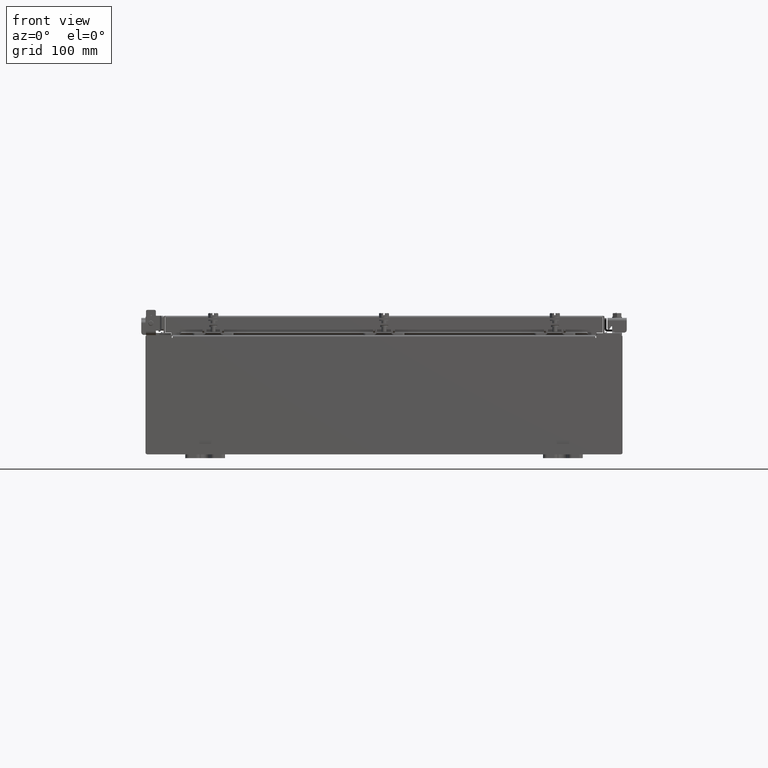
[diagram: clean part render]
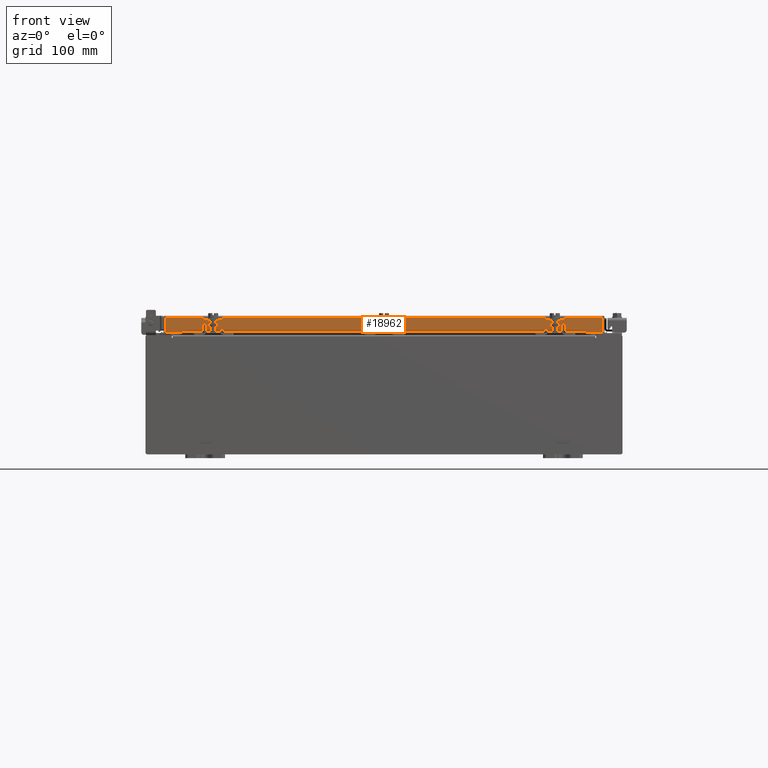
[diagram: same view with one face highlighted and labeled with its STEP entity id]
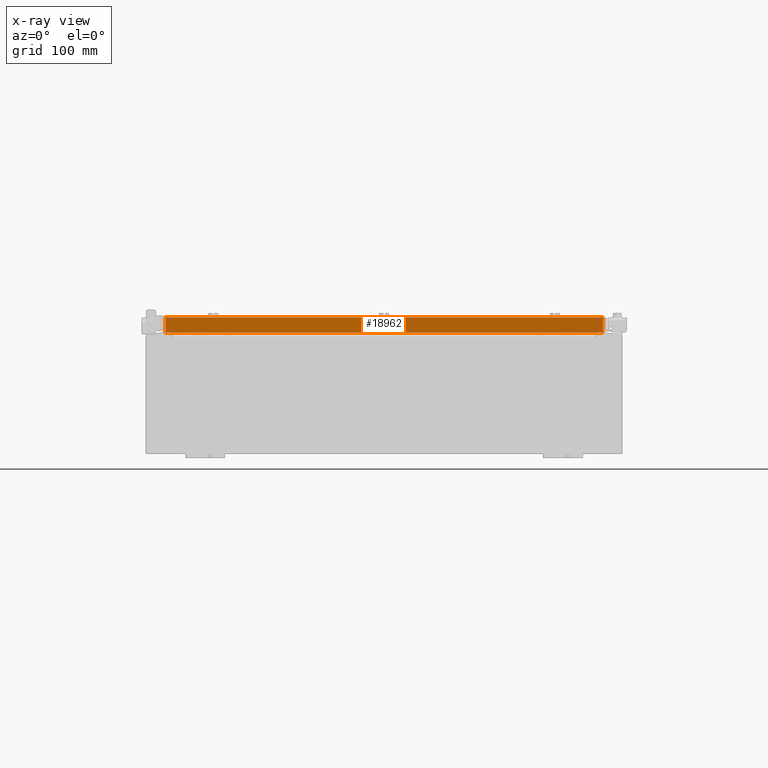
[diagram: x-ray of the same camera — body ghosted, the highlighted face saturated]
A machine part, front view. The second image highlights one B-rep face of the part: STEP entity #18962.
The next image is the same camera in x-ray: the body ghosted, the highlighted face saturated — about 0% of this face is hidden behind the body in this view.
In plain terms, the highlighted planar face has unit normal (-0, 1, -0).
Its self-contained STEP definition (entity closure, byte-faithful):
#110 = CARTESIAN_POINT ( 'NONE',  ( 11.09399999999999200, -11.09400000000000100, -0.08770000000000026400 ) ) ;
#446 = EDGE_CURVE ( 'NONE', #4461, #19142, #17648, .T. ) ;
#724 = CARTESIAN_POINT ( 'NONE',  ( 11.00515786437626200, -11.09400000000000100, -0.07470000000000015500 ) ) ;
#830 = CARTESIAN_POINT ( 'NONE',  ( -11.00515786437626900, -11.09400000000000300, -0.8499999999999966500 ) ) ;
#1099 = ORIENTED_EDGE ( 'NONE', *, *, #6764, .F. ) ;
#1215 = DIRECTION ( 'NONE',  ( -3.470684265319587400E-031, 1.000000000000000000, -2.818880942772360100E-015 ) ) ;
#1598 = EDGE_LOOP ( 'NONE', ( #1099, #2215, #4861, #21094, #13636, #7870 ) ) ;
#2215 = ORIENTED_EDGE ( 'NONE', *, *, #4498, .T. ) ;
#2684 = CARTESIAN_POINT ( 'NONE',  ( -11.00515786437627100, -11.09400000000000100, 3.168943672650545400E-014 ) ) ;
#4010 = VECTOR ( 'NONE', #20146, 39.37007874015748100 ) ;
#4461 = VERTEX_POINT ( 'NONE', #14708 ) ;
#4498 = EDGE_CURVE ( 'NONE', #16967, #14474, #5655, .T. ) ;
#4563 = CARTESIAN_POINT ( 'NONE',  ( 11.09399999999999200, -11.09400000000000300, -0.8499999999999999800 ) ) ;
#4613 = CARTESIAN_POINT ( 'NONE',  ( 0.0000000000000000000, -11.09400000000000100, 3.168943672650545400E-014 ) ) ;
#4861 = ORIENTED_EDGE ( 'NONE', *, *, #15860, .F. ) ;
#5360 = LINE ( 'NONE', #724, #15446 ) ;
#5655 = LINE ( 'NONE', #2684, #4010 ) ;
#6309 = DIRECTION ( 'NONE',  ( -1.000000000000000000, 4.379057701015054300E-047, 1.231227687788112800E-016 ) ) ;
#6321 = VERTEX_POINT ( 'NONE', #7458 ) ;
#6764 = EDGE_CURVE ( 'NONE', #16967, #7977, #22100, .T. ) ;
#7063 = DIRECTION ( 'NONE',  ( 1.000000000000000000, 3.470684265319588300E-031, -9.460278716967662300E-046 ) ) ;
#7458 = CARTESIAN_POINT ( 'NONE',  ( -10.25515786437626900, -11.09400000000000100, -0.8500000000000020900 ) ) ;
#7645 = VECTOR ( 'NONE', #6309, 39.37007874015748100 ) ;
#7688 = FACE_OUTER_BOUND ( 'NONE', #1598, .T. ) ;
#7839 = VECTOR ( 'NONE', #18468, 39.37007874015748100 ) ;
#7870 = ORIENTED_EDGE ( 'NONE', *, *, #9265, .F. ) ;
#7977 = VERTEX_POINT ( 'NONE', #11017 ) ;
#9265 = EDGE_CURVE ( 'NONE', #7977, #4461, #5360, .T. ) ;
#9878 = EDGE_CURVE ( 'NONE', #19142, #6321, #22379, .T. ) ;
#10729 = DIRECTION ( 'NONE',  ( -1.000000000000000000, 0.0000000000000000000, 0.0000000000000000000 ) ) ;
#11017 = CARTESIAN_POINT ( 'NONE',  ( 11.00515786437626200, -11.09400000000000100, -0.08770000000000026400 ) ) ;
#13063 = VECTOR ( 'NONE', #10729, 39.37007874015748100 ) ;
#13202 = PLANE ( 'NONE',  #18015 ) ;
#13342 = DIRECTION ( 'NONE',  ( 0.0000000000000000000, 2.818880942772360100E-015, 1.000000000000000000 ) ) ;
#13636 = ORIENTED_EDGE ( 'NONE', *, *, #446, .F. ) ;
#14474 = VERTEX_POINT ( 'NONE', #830 ) ;
#14708 = CARTESIAN_POINT ( 'NONE',  ( 11.00515786437626200, -11.09400000000000300, -0.8499999999999999800 ) ) ;
#15446 = VECTOR ( 'NONE', #16317, 39.37007874015748100 ) ;
#15860 = EDGE_CURVE ( 'NONE', #6321, #14474, #22144, .T. ) ;
#16317 = DIRECTION ( 'NONE',  ( -0.0000000000000000000, -2.818880942772360100E-015, -1.000000000000000000 ) ) ;
#16967 = VERTEX_POINT ( 'NONE', #21437 ) ;
#17432 = VECTOR ( 'NONE', #7063, 39.37007874015748100 ) ;
#17648 = LINE ( 'NONE', #21387, #7839 ) ;
#18015 = AXIS2_PLACEMENT_3D ( 'NONE', #4613, #1215, #13342 ) ;
#18468 = DIRECTION ( 'NONE',  ( -1.000000000000000000, 4.379057701015054300E-047, 1.231227687788112800E-016 ) ) ;
#18962 = ADVANCED_FACE ( 'NONE', ( #7688 ), #13202, .F. ) ;
#18991 = CARTESIAN_POINT ( 'NONE',  ( 10.25515786437626000, -11.09400000000000100, -0.8500000000000020900 ) ) ;
#19142 = VERTEX_POINT ( 'NONE', #18991 ) ;
#20146 = DIRECTION ( 'NONE',  ( 0.0000000000000000000, -2.818880942772360100E-015, -1.000000000000000000 ) ) ;
#21094 = ORIENTED_EDGE ( 'NONE', *, *, #9878, .F. ) ;
#21253 = CARTESIAN_POINT ( 'NONE',  ( 10.25515786437626000, -11.09400000000000100, -0.8500000000000020900 ) ) ;
#21387 = CARTESIAN_POINT ( 'NONE',  ( 11.09399999999999200, -11.09400000000000300, -0.8499999999999999800 ) ) ;
#21437 = CARTESIAN_POINT ( 'NONE',  ( -11.00515786437626900, -11.09400000000000100, -0.08770000000000026400 ) ) ;
#22100 = LINE ( 'NONE', #110, #17432 ) ;
#22144 = LINE ( 'NONE', #4563, #7645 ) ;
#22379 = LINE ( 'NONE', #21253, #13063 ) ;